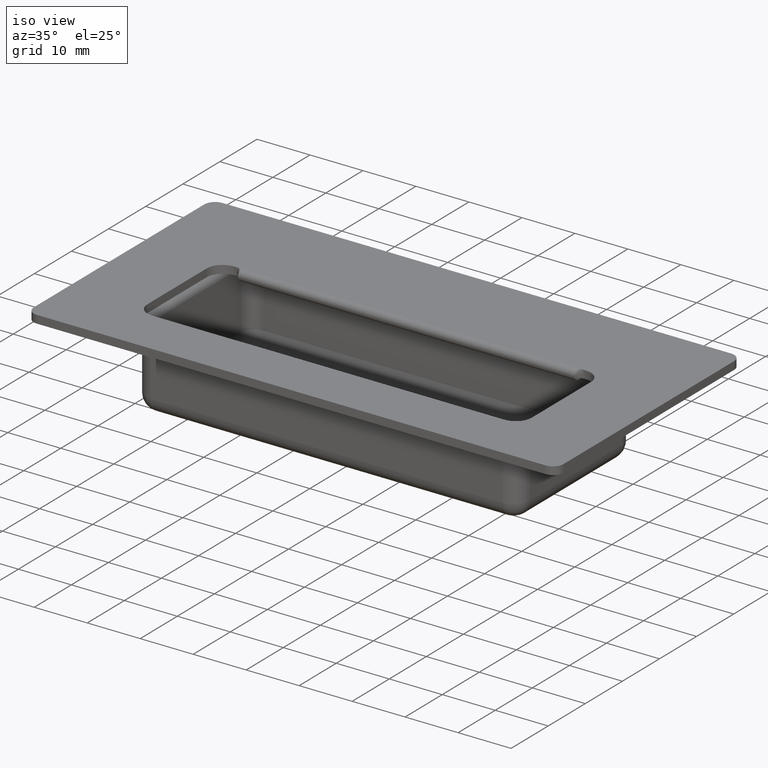
[diagram: clean part render]
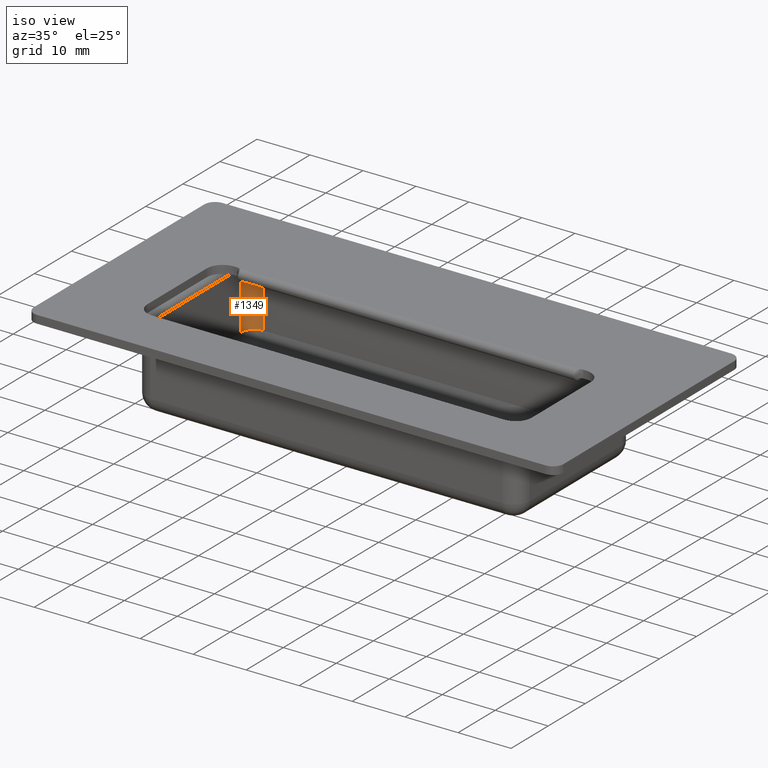
[diagram: same view with one face highlighted and labeled with its STEP entity id]
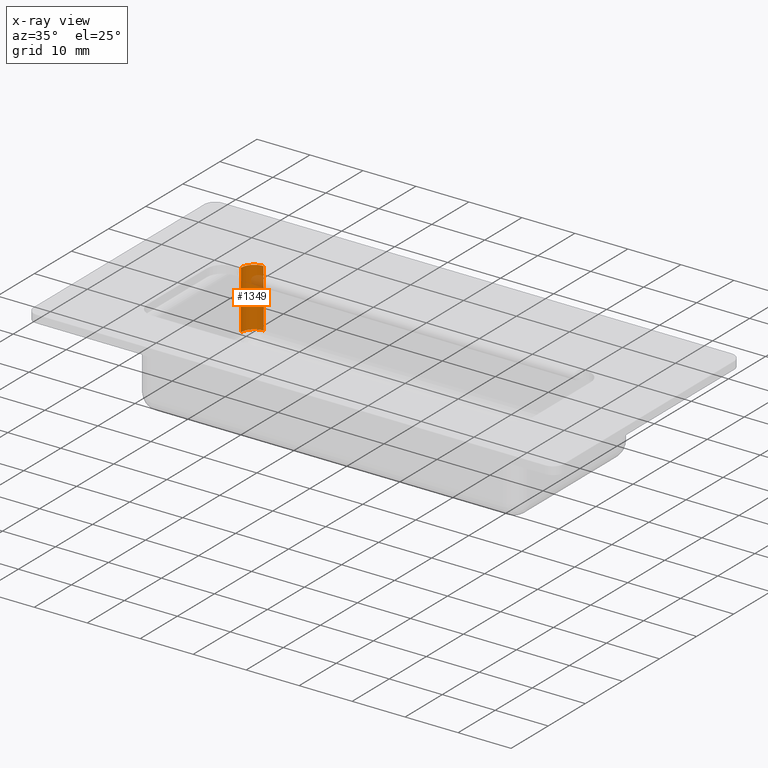
[diagram: x-ray of the same camera — body ghosted, the highlighted face saturated]
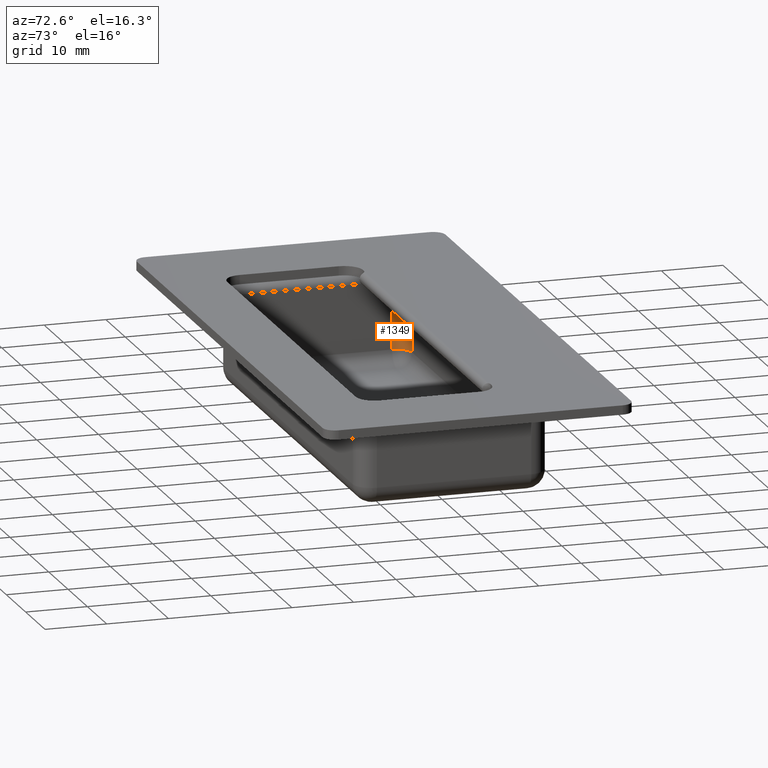
[diagram: same view with one face highlighted and labeled with its STEP entity id]
A machine part, iso view. The second image highlights one B-rep face of the part: STEP entity #1349.
The next image is the same camera in x-ray: the body ghosted, the highlighted face saturated — about 8% of this face is hidden behind the body in this view.
A second angle (auxiliary view) of the same face is appended — the face is thin or edge-on in the first view.
In plain terms, the highlighted cylindrical surface (edge-blend (fillet) strip) has radius 2.5 mm, axis along (0, 0, 1).
Its self-contained STEP definition (entity closure, byte-faithful):
#55=CYLINDRICAL_SURFACE('',#1484,2.5);
#135=LINE('',#2435,#243);
#139=LINE('',#2456,#247);
#243=VECTOR('',#1779,11.);
#247=VECTOR('',#1807,11.);
#369=FACE_OUTER_BOUND('',#457,.T.);
#457=EDGE_LOOP('',(#1127,#1128,#1129,#1130));
#518=CIRCLE('',#1436,2.5);
#535=CIRCLE('',#1467,2.5);
#633=VERTEX_POINT('',#2362);
#635=VERTEX_POINT('',#2365);
#647=VERTEX_POINT('',#2402);
#653=VERTEX_POINT('',#2424);
#776=EDGE_CURVE('',#635,#633,#518,.T.);
#809=EDGE_CURVE('',#653,#647,#535,.T.);
#811=EDGE_CURVE('',#635,#647,#135,.T.);
#822=EDGE_CURVE('',#653,#633,#139,.T.);
#1127=ORIENTED_EDGE('',*,*,#776,.T.);
#1128=ORIENTED_EDGE('',*,*,#822,.F.);
#1129=ORIENTED_EDGE('',*,*,#809,.T.);
#1130=ORIENTED_EDGE('',*,*,#811,.F.);
#1349=ADVANCED_FACE('',(#369),#55,.F.);
#1436=AXIS2_PLACEMENT_3D('',#2366,#1696,#1697);
#1467=AXIS2_PLACEMENT_3D('',#2432,#1774,#1775);
#1484=AXIS2_PLACEMENT_3D('',#2461,#1814,#1815);
#1696=DIRECTION('center_axis',(0.,0.,1.));
#1697=DIRECTION('ref_axis',(-0.707106781186548,0.707106781186547,0.));
#1774=DIRECTION('center_axis',(0.,0.,-1.));
#1775=DIRECTION('ref_axis',(-0.707106781186547,0.707106781186547,0.));
#1779=DIRECTION('',(0.,0.,-1.));
#1807=DIRECTION('',(0.,0.,1.));
#1814=DIRECTION('center_axis',(0.,0.,1.));
#1815=DIRECTION('ref_axis',(-0.707106781186547,0.707106781186547,0.));
#2362=CARTESIAN_POINT('',(-35.75,12.5,-1.5));
#2365=CARTESIAN_POINT('',(-33.25,15.,-1.5));
#2366=CARTESIAN_POINT('Origin',(-33.25,12.5,-1.5));
#2402=CARTESIAN_POINT('',(-33.25,15.,-12.5));
#2424=CARTESIAN_POINT('',(-35.75,12.5,-12.5));
#2432=CARTESIAN_POINT('Origin',(-33.25,12.5,-12.5));
#2435=CARTESIAN_POINT('',(-33.25,15.,-15.5));
#2456=CARTESIAN_POINT('',(-35.75,12.5,-15.5));
#2461=CARTESIAN_POINT('Origin',(-33.25,12.5,-15.5));